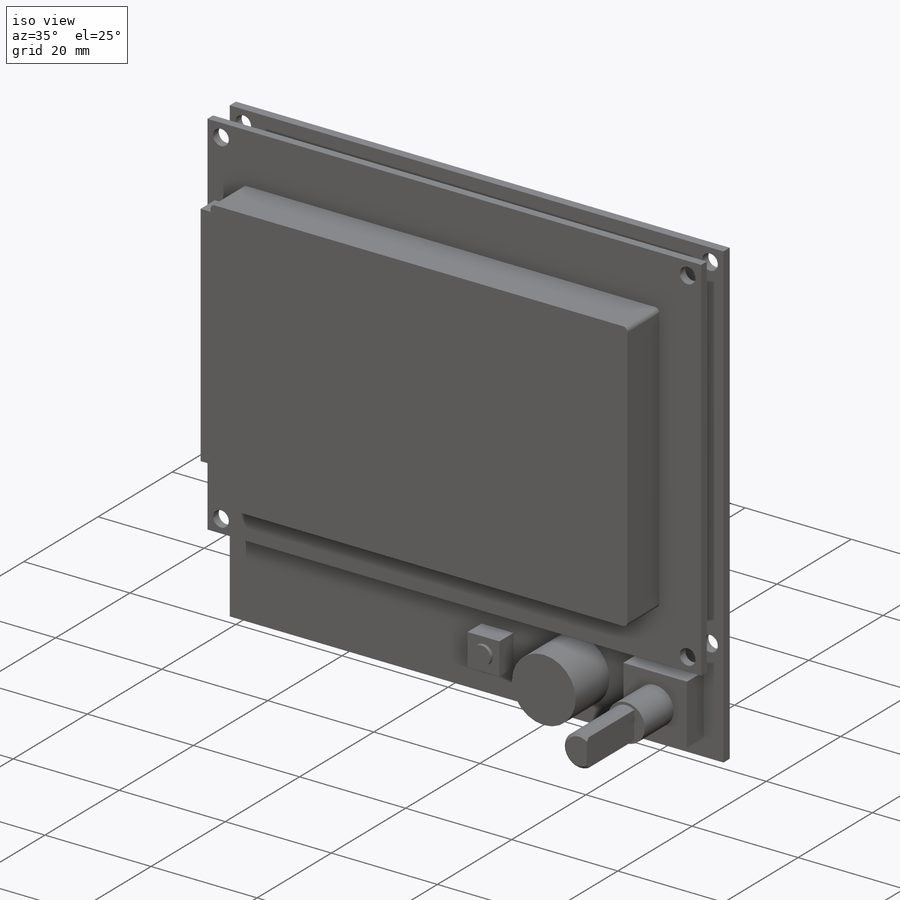
[diagram: iso view]
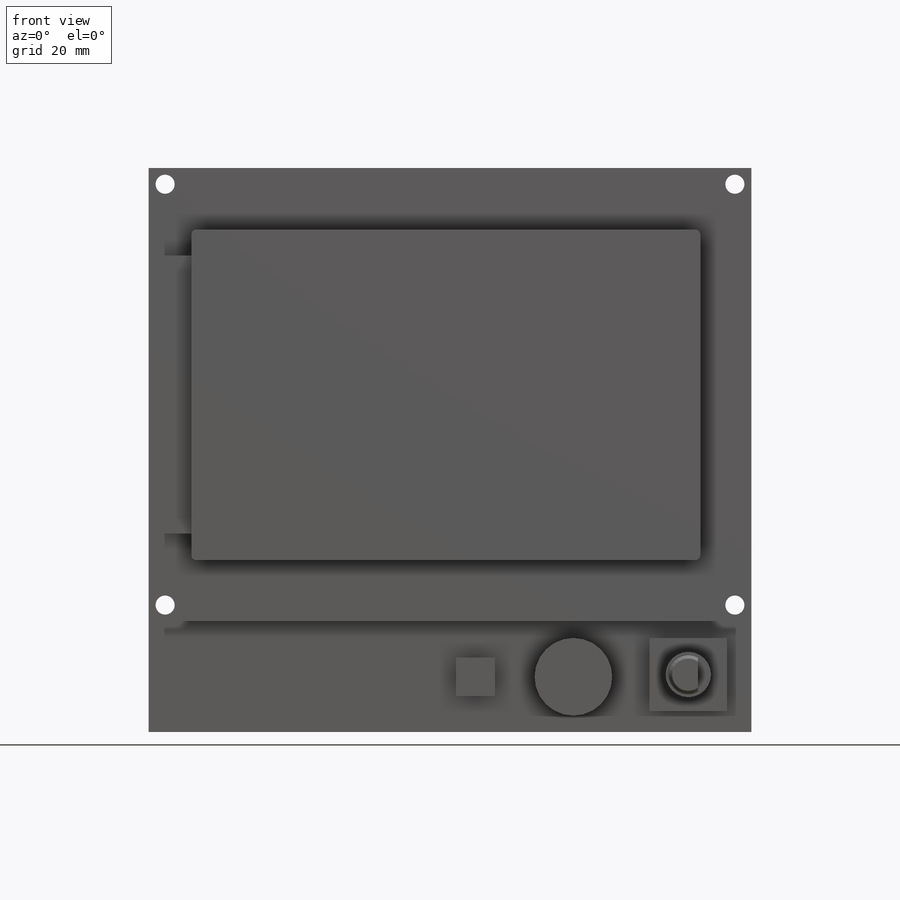
[diagram: front view]
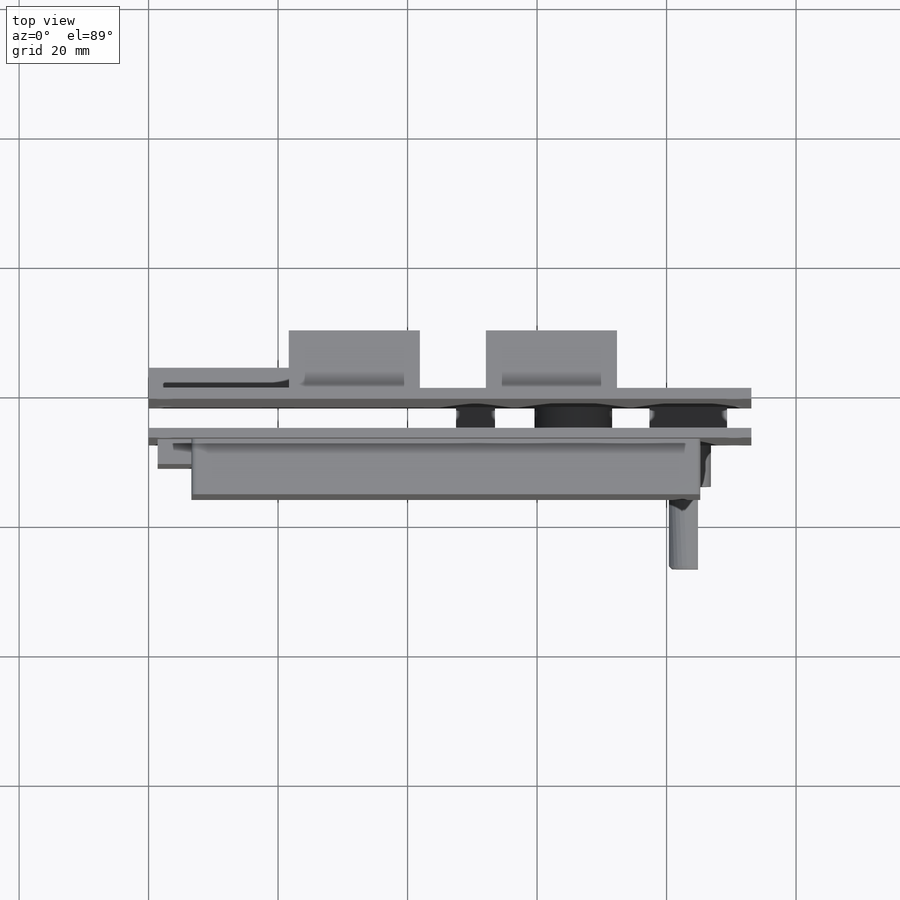
[diagram: top view]
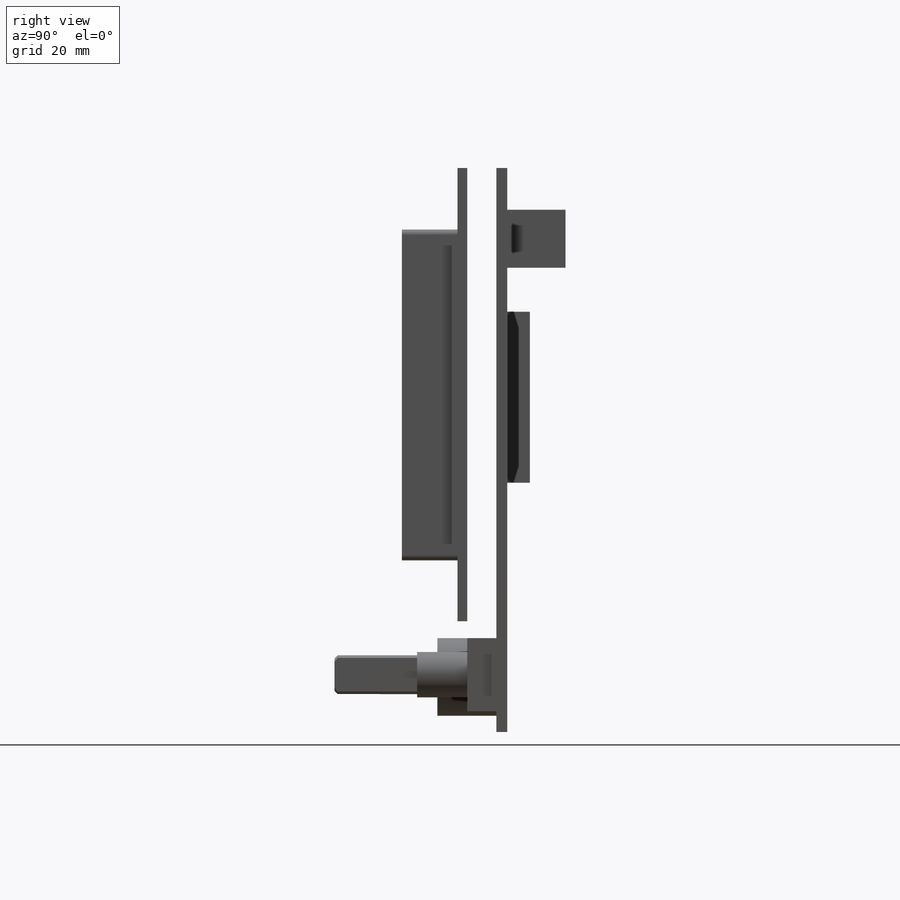
[diagram: right view]
SOLIDWORKS PART (.sldprt)
format: sldprt  version: not decoded by parser v0  size: 377,856 bytes
history: native  units: mm
features: sketch x12, extrude x12, material x1, chamfer x1 (+11 scaffold rows collapsed)
feature tree (37):
  scaffold x11  (default folders/planes/origin — collapsed)
  material  "Material <not specified>"
  sketch  "Sketch1"  dims[D6=2.95mm D1=87.1mm D2=93.1mm D3=88.0mm D4=65.0mm D5=2.5mm]
  extrude  "Boss-Extrude1"  Depth=1.67mm
  sketch  "Sketch2"  dims[D1=70.0mm]
  extrude  "Boss-Extrude2"  Depth=1.5mm
  sketch  "Sketch3"  dims[D5=0.8mm D1=60.6mm D2=51.1mm D3=85.2mm D4=78.6mm]
  extrude  "Boss-Extrude3"  Depth=8.6mm
  sketch  "Sketch4"  dims[D1=56.5mm D2=43.0mm D3=83.8mm]
  extrude  "Boss-Extrude4"  Depth=3.85mm
  sketch  "Sketch5"  dims[D1=11.5mm D2=53.5mm D3=6.0mm D4=6.0mm]
  extrude  "Boss-Extrude5"  Depth=3.78mm
  sketch  "Sketch6"  dims[D1=3.5mm]
  extrude  "Boss-Extrude6"  Depth=0.6mm
  sketch  "Sketch7"  dims[c1.D1=~9.747475mm c1.D3=12.0mm c2.D1=33.5mm c2.D2=14.5mm]
  extrude  "Boss-Extrude7"  Depth=9.11mm
  sketch  "Sketch8"  dims[D1=14.5mm D2=11.3mm D3=15.75mm D4=12.0mm]
  extrude  "Boss-Extrude8"  Depth=4.5mm
  sketch  "Sketch9"  dims[D1=7.0mm]
  extrude  "Boss-Extrude10"  Depth=12.25mm
  sketch  "Sketch11"  dims[D1=~2.283427mm D2=4.5mm]
  extrude  "Boss-Extrude11"  Depth=25mm
  chamfer  "Chamfer1"  Distance=0.5mm Angle=45deg
  sketch  "Sketch12"  dims[D1=20.25mm D2=8.95mm D3=41.0mm D4=50.7mm D5=15.4mm]
  extrude  "Boss-Extrude12"  Depth=9mm
  sketch  "Sketch13"  dims[D1=26.0mm D2=26.4mm D3=48.6mm]
  extrude  "Boss-Extrude13"  Depth=3.5mm
decode coverage: 25 of 25 modeling features carry decoded parameters
note: ~ marks probable driven/reference dimensions
note: suppression state not decoded; provenance and decode notes live in map.json
